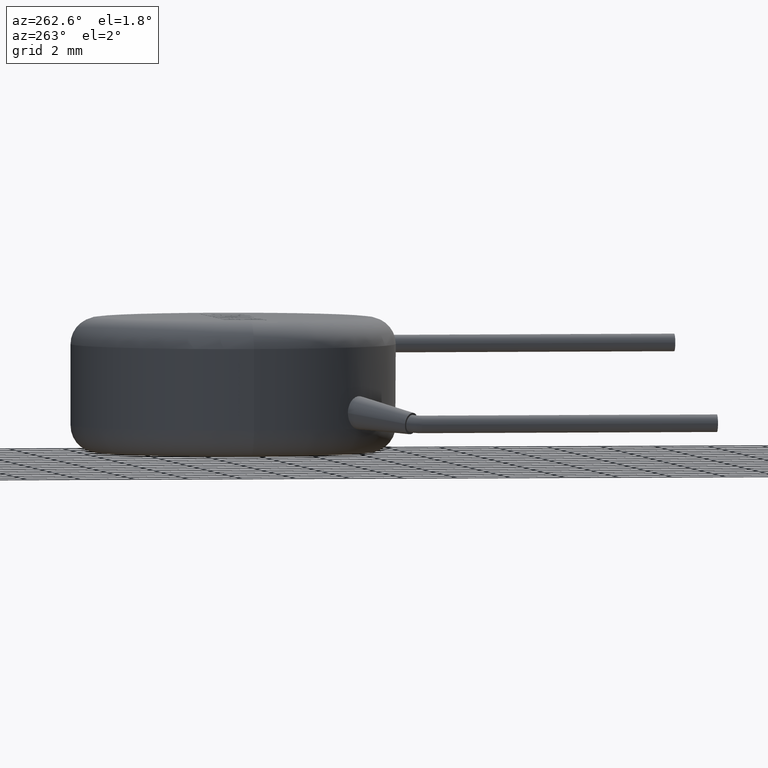
[diagram: clean part render]
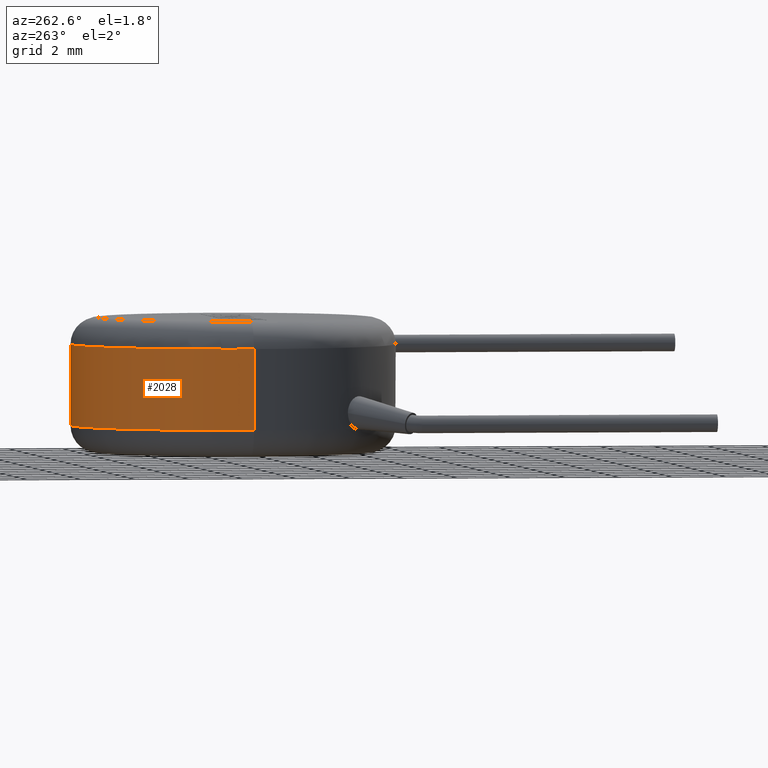
[diagram: same view with one face highlighted and labeled with its STEP entity id]
A machine part, auxiliary view. The second image highlights one B-rep face of the part: STEP entity #2028.
In plain terms, the highlighted cylindrical surface (partial cylindrical patch) has radius 6 mm, axis along (-0, -0, -1).
Its self-contained STEP definition (entity closure, byte-faithful):
#134 = DIRECTION ( 'NONE',  ( -0.0000000000000000000, -0.0000000000000000000, -1.000000000000000000 ) ) ;
#204 = EDGE_CURVE ( 'NONE', #2230, #412, #1335, .T. ) ;
#249 = CIRCLE ( 'NONE', #2737, 6.000000000000000900 ) ;
#348 = EDGE_CURVE ( 'NONE', #3204, #412, #393, .T. ) ;
#393 = CIRCLE ( 'NONE', #3376, 6.000000000000000900 ) ;
#412 = VERTEX_POINT ( 'NONE', #2224 ) ;
#439 = DIRECTION ( 'NONE',  ( 1.000000000000000000, 0.0000000000000000000, 0.0000000000000000000 ) ) ;
#655 = CARTESIAN_POINT ( 'NONE',  ( 6.000000000000000900, 7.347880794884120700E-016, 4.000000000000000000 ) ) ;
#703 = CARTESIAN_POINT ( 'NONE',  ( -6.000000000000000900, 0.0000000000000000000, 4.000000000000000000 ) ) ;
#787 = ORIENTED_EDGE ( 'NONE', *, *, #2744, .T. ) ;
#943 = CARTESIAN_POINT ( 'NONE',  ( -6.000000000000000900, 0.0000000000000000000, 5.000000000000000000 ) ) ;
#1295 = ORIENTED_EDGE ( 'NONE', *, *, #348, .T. ) ;
#1335 = LINE ( 'NONE', #943, #1821 ) ;
#1359 = DIRECTION ( 'NONE',  ( 0.0000000000000000000, 0.0000000000000000000, 1.000000000000000000 ) ) ;
#1487 = VECTOR ( 'NONE', #134, 1000.000000000000000 ) ;
#1675 = ORIENTED_EDGE ( 'NONE', *, *, #204, .F. ) ;
#1821 = VECTOR ( 'NONE', #3569, 1000.000000000000000 ) ;
#1872 = FACE_OUTER_BOUND ( 'NONE', #3554, .T. ) ;
#2028 = ADVANCED_FACE ( 'NONE', ( #1872 ), #3548, .T. ) ;
#2209 = DIRECTION ( 'NONE',  ( -0.0000000000000000000, -0.0000000000000000000, -1.000000000000000000 ) ) ;
#2224 = CARTESIAN_POINT ( 'NONE',  ( -6.000000000000000900, 0.0000000000000000000, 1.000000000000000000 ) ) ;
#2230 = VERTEX_POINT ( 'NONE', #703 ) ;
#2462 = CARTESIAN_POINT ( 'NONE',  ( 0.0000000000000000000, 0.0000000000000000000, 5.000000000000000000 ) ) ;
#2507 = VERTEX_POINT ( 'NONE', #655 ) ;
#2509 = CARTESIAN_POINT ( 'NONE',  ( 6.000000000000000900, 7.347880794884120700E-016, 1.000000000000000000 ) ) ;
#2609 = EDGE_CURVE ( 'NONE', #2230, #2507, #249, .T. ) ;
#2737 = AXIS2_PLACEMENT_3D ( 'NONE', #3102, #2209, #439 ) ;
#2744 = EDGE_CURVE ( 'NONE', #2507, #3204, #3107, .T. ) ;
#2789 = DIRECTION ( 'NONE',  ( -0.0000000000000000000, -0.0000000000000000000, -1.000000000000000000 ) ) ;
#3052 = CARTESIAN_POINT ( 'NONE',  ( 0.0000000000000000000, 0.0000000000000000000, 1.000000000000000000 ) ) ;
#3102 = CARTESIAN_POINT ( 'NONE',  ( 0.0000000000000000000, 0.0000000000000000000, 4.000000000000000000 ) ) ;
#3107 = LINE ( 'NONE', #3490, #1487 ) ;
#3157 = AXIS2_PLACEMENT_3D ( 'NONE', #2462, #2789, #3158 ) ;
#3158 = DIRECTION ( 'NONE',  ( -1.000000000000000000, 0.0000000000000000000, 0.0000000000000000000 ) ) ;
#3204 = VERTEX_POINT ( 'NONE', #2509 ) ;
#3376 = AXIS2_PLACEMENT_3D ( 'NONE', #3052, #1359, #3388 ) ;
#3388 = DIRECTION ( 'NONE',  ( 1.000000000000000000, 0.0000000000000000000, 0.0000000000000000000 ) ) ;
#3490 = CARTESIAN_POINT ( 'NONE',  ( 6.000000000000000900, 7.347880794884120700E-016, 5.000000000000000000 ) ) ;
#3548 = CYLINDRICAL_SURFACE ( 'NONE', #3157, 6.000000000000000900 ) ;
#3554 = EDGE_LOOP ( 'NONE', ( #3612, #787, #1295, #1675 ) ) ;
#3569 = DIRECTION ( 'NONE',  ( -0.0000000000000000000, -0.0000000000000000000, -1.000000000000000000 ) ) ;
#3612 = ORIENTED_EDGE ( 'NONE', *, *, #2609, .T. ) ;